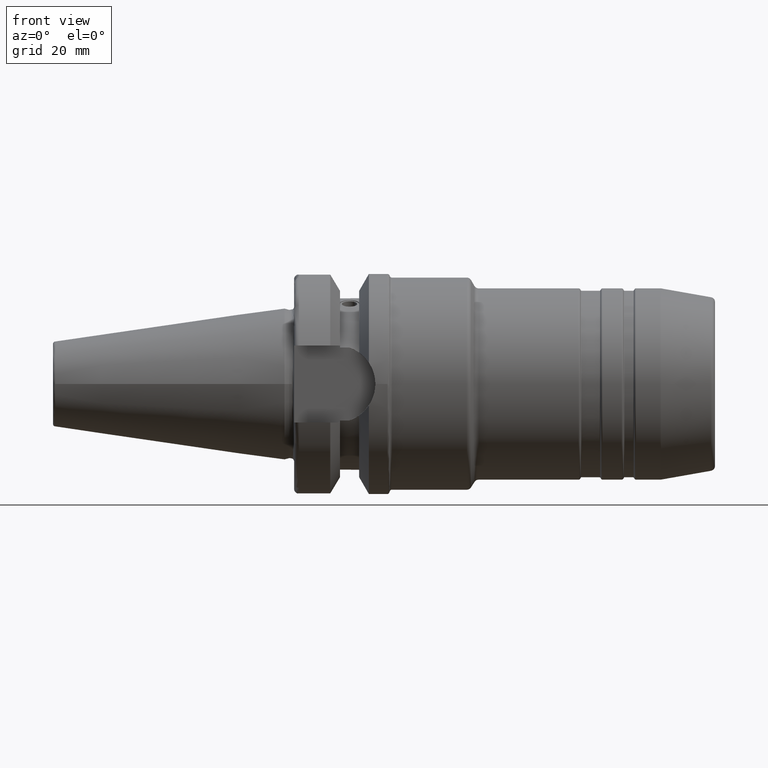
[diagram: clean part render]
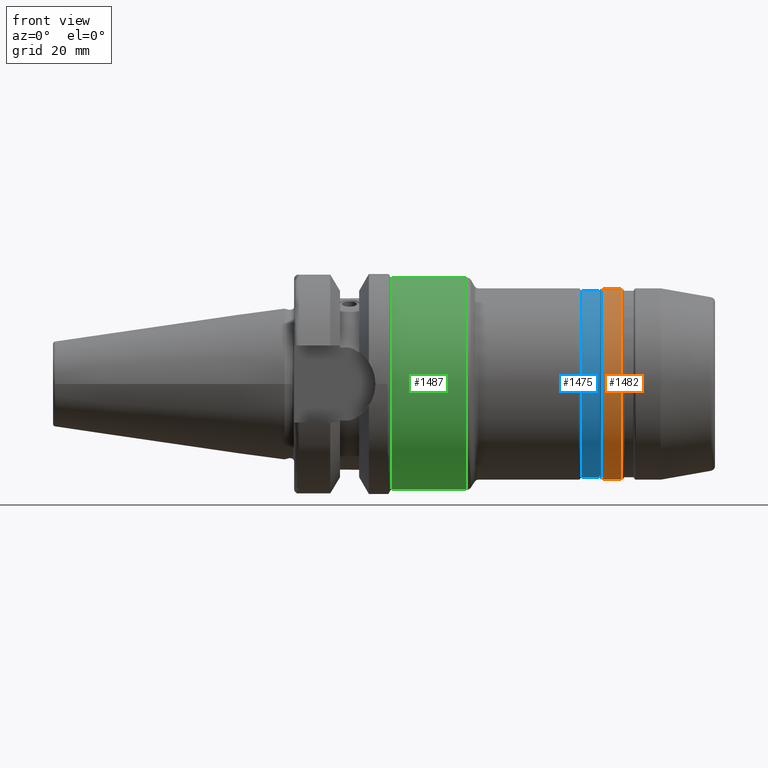
[diagram: same view with three faces highlighted in distinct colors, each labeled with its STEP entity id]
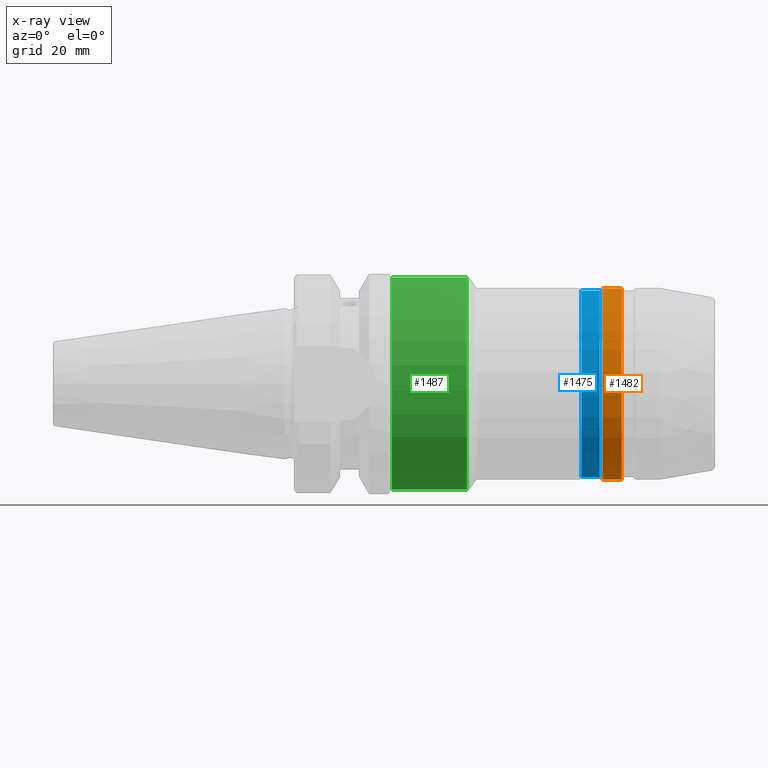
[diagram: x-ray of the same camera — body ghosted, the three highlighted faces saturated]
A machine part, front view with three faces highlighted in distinct colors.
The next image is the same camera in x-ray (body ghosted, the three faces saturated) — at least one of them is partly hidden behind the body in this view.
Their STEP definitions:

[orange] entity #1482 — the highlighted cylindrical surface (bore or boss wall) has radius 20 mm, axis along (1, 0, 0).
#124=LINE('',#2377,#197);
#197=VECTOR('',#1885,20.);
#266=CYLINDRICAL_SURFACE('',#1619,20.);
#314=FACE_OUTER_BOUND('',#407,.T.);
#407=EDGE_LOOP('',(#1034,#1035,#1036,#1037));
#517=CIRCLE('',#1617,20.);
#519=CIRCLE('',#1620,20.);
#618=VERTEX_POINT('',#2371);
#619=VERTEX_POINT('',#2375);
#774=EDGE_CURVE('',#618,#618,#517,.T.);
#776=EDGE_CURVE('',#619,#619,#519,.T.);
#777=EDGE_CURVE('',#619,#618,#124,.T.);
#1034=ORIENTED_EDGE('',*,*,#776,.F.);
#1035=ORIENTED_EDGE('',*,*,#777,.T.);
#1036=ORIENTED_EDGE('',*,*,#774,.F.);
#1037=ORIENTED_EDGE('',*,*,#777,.F.);
#1482=ADVANCED_FACE('',(#314),#266,.T.);
#1617=AXIS2_PLACEMENT_3D('',#2372,#1877,#1878);
#1619=AXIS2_PLACEMENT_3D('',#2374,#1881,#1882);
#1620=AXIS2_PLACEMENT_3D('',#2376,#1883,#1884);
#1877=DIRECTION('center_axis',(-1.,0.,0.));
#1878=DIRECTION('ref_axis',(0.,1.22464679914735E-16,1.));
#1881=DIRECTION('center_axis',(1.,0.,0.));
#1882=DIRECTION('ref_axis',(0.,0.,-1.));
#1883=DIRECTION('center_axis',(1.,0.,0.));
#1884=DIRECTION('ref_axis',(0.,1.22464679914735E-16,1.));
#1885=DIRECTION('',(-1.,0.,0.));
#2371=CARTESIAN_POINT('',(66.5196152422707,-2.44929359829471E-15,20.));
#2372=CARTESIAN_POINT('Origin',(66.5196152422707,0.,0.));
#2374=CARTESIAN_POINT('Origin',(68.5,0.,0.));
#2375=CARTESIAN_POINT('',(70.4803847577293,-2.44929359829471E-15,20.));
#2376=CARTESIAN_POINT('Origin',(70.4803847577293,0.,0.));
#2377=CARTESIAN_POINT('',(68.5,-2.44929359829471E-15,20.));

[blue] entity #1475 — the highlighted cylindrical surface (bore or boss wall) has radius 19.5 mm, axis along (1, 0, 0).
#120=LINE('',#2348,#193);
#193=VECTOR('',#1845,19.5);
#264=CYLINDRICAL_SURFACE('',#1602,19.5);
#307=FACE_OUTER_BOUND('',#400,.T.);
#400=EDGE_LOOP('',(#1006,#1007,#1008,#1009));
#506=CIRCLE('',#1599,19.5);
#509=CIRCLE('',#1603,19.5);
#610=VERTEX_POINT('',#2341);
#612=VERTEX_POINT('',#2347);
#759=EDGE_CURVE('',#610,#610,#506,.T.);
#762=EDGE_CURVE('',#610,#612,#120,.T.);
#763=EDGE_CURVE('',#612,#612,#509,.T.);
#1006=ORIENTED_EDGE('',*,*,#759,.F.);
#1007=ORIENTED_EDGE('',*,*,#762,.T.);
#1008=ORIENTED_EDGE('',*,*,#763,.F.);
#1009=ORIENTED_EDGE('',*,*,#762,.F.);
#1475=ADVANCED_FACE('',(#307),#264,.T.);
#1599=AXIS2_PLACEMENT_3D('',#2342,#1837,#1838);
#1602=AXIS2_PLACEMENT_3D('',#2346,#1843,#1844);
#1603=AXIS2_PLACEMENT_3D('',#2349,#1846,#1847);
#1837=DIRECTION('center_axis',(1.,0.,0.));
#1838=DIRECTION('ref_axis',(0.,1.22464679914735E-16,1.));
#1843=DIRECTION('center_axis',(1.,0.,0.));
#1844=DIRECTION('ref_axis',(0.,0.,-1.));
#1845=DIRECTION('',(-1.,0.,0.));
#1846=DIRECTION('center_axis',(-1.,0.,0.));
#1847=DIRECTION('ref_axis',(0.,1.22464679914735E-16,1.));
#2341=CARTESIAN_POINT('',(65.8845299461621,-2.38806125833734E-15,19.5));
#2342=CARTESIAN_POINT('Origin',(65.8845299461621,0.,0.));
#2346=CARTESIAN_POINT('Origin',(64.,0.,0.));
#2347=CARTESIAN_POINT('',(62.1154700538379,-2.38806125833734E-15,19.5));
#2348=CARTESIAN_POINT('',(64.,-2.38806125833734E-15,19.5));
#2349=CARTESIAN_POINT('Origin',(62.1154700538379,0.,0.));

[green] entity #1487 — the highlighted cylindrical surface (bore or boss wall) has radius 22.25 mm, axis along (1, 0, 0).
#126=LINE('',#2397,#199);
#199=VECTOR('',#1913,22.25);
#268=CYLINDRICAL_SURFACE('',#1632,22.25);
#319=FACE_OUTER_BOUND('',#412,.T.);
#412=EDGE_LOOP('',(#1054,#1055,#1056,#1057));
#526=CIRCLE('',#1631,22.25);
#527=CIRCLE('',#1633,22.25);
#623=VERTEX_POINT('',#2391);
#624=VERTEX_POINT('',#2395);
#785=EDGE_CURVE('',#623,#623,#526,.T.);
#786=EDGE_CURVE('',#624,#624,#527,.T.);
#787=EDGE_CURVE('',#624,#623,#126,.T.);
#1054=ORIENTED_EDGE('',*,*,#786,.F.);
#1055=ORIENTED_EDGE('',*,*,#787,.T.);
#1056=ORIENTED_EDGE('',*,*,#785,.F.);
#1057=ORIENTED_EDGE('',*,*,#787,.F.);
#1487=ADVANCED_FACE('',(#319),#268,.T.);
#1631=AXIS2_PLACEMENT_3D('',#2393,#1907,#1908);
#1632=AXIS2_PLACEMENT_3D('',#2394,#1909,#1910);
#1633=AXIS2_PLACEMENT_3D('',#2396,#1911,#1912);
#1907=DIRECTION('center_axis',(-1.,0.,0.));
#1908=DIRECTION('ref_axis',(0.,1.22464610627403E-16,-1.));
#1909=DIRECTION('center_axis',(1.,0.,0.));
#1910=DIRECTION('ref_axis',(0.,0.,-1.));
#1911=DIRECTION('center_axis',(1.,0.,0.));
#1912=DIRECTION('ref_axis',(0.,1.22464679914735E-16,1.));
#1913=DIRECTION('',(-1.,0.,0.));
#2391=CARTESIAN_POINT('',(22.4682458365518,2.08177211288445E-15,22.25));
#2393=CARTESIAN_POINT('Origin',(22.4682458365518,2.0817705712413E-15,0.));
#2394=CARTESIAN_POINT('Origin',(30.3504809471617,0.,0.));
#2395=CARTESIAN_POINT('',(38.1236116251337,-2.72483912810286E-15,22.25));
#2396=CARTESIAN_POINT('Origin',(38.1236116251337,0.,0.));
#2397=CARTESIAN_POINT('',(30.3504809471617,-2.72483912810286E-15,22.25));